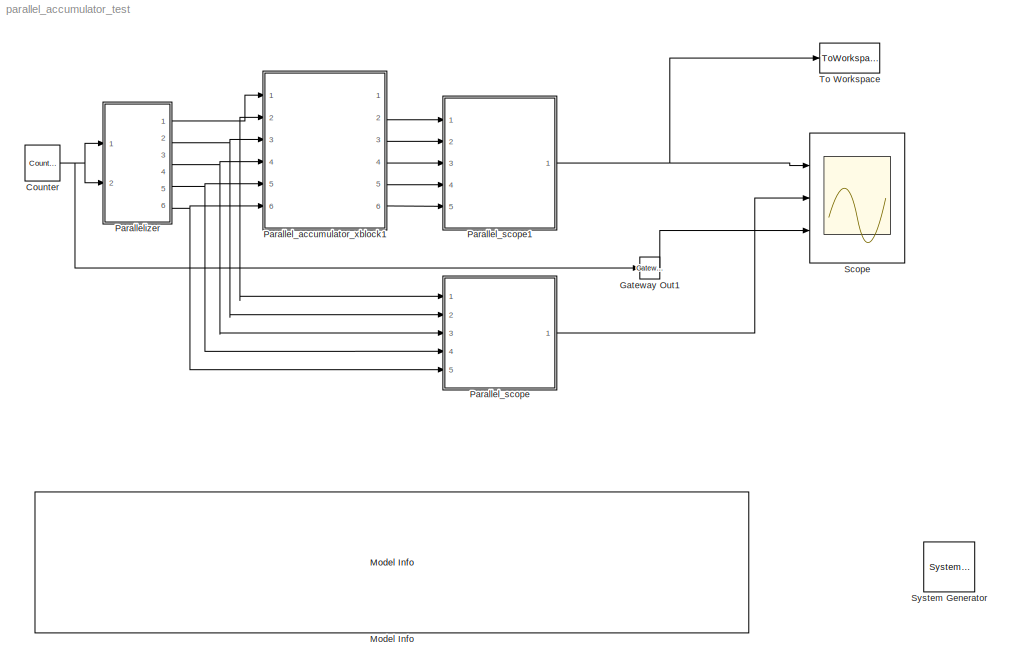
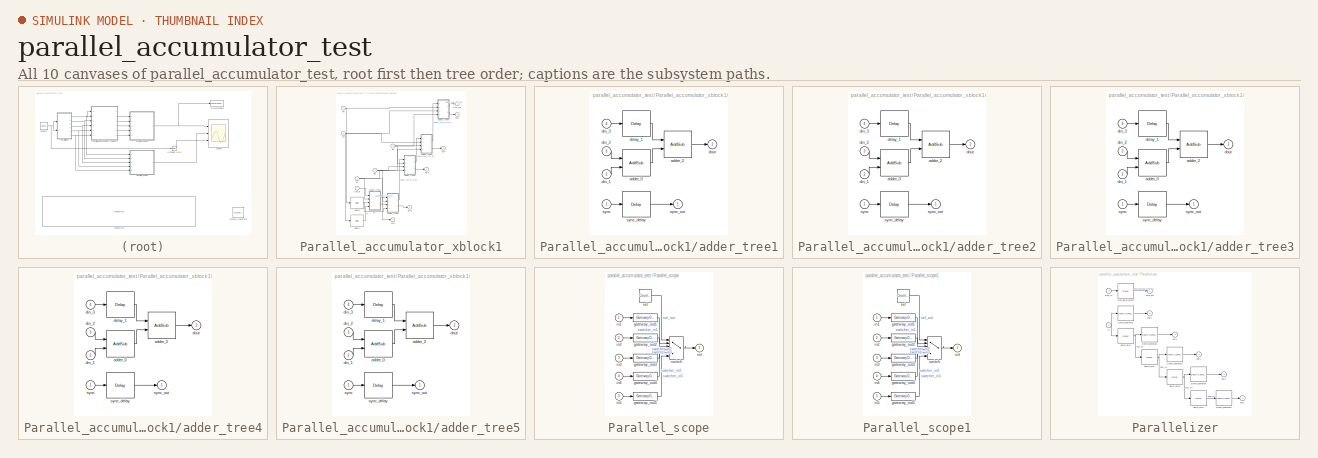
[diagram: thumbnail index - all 10 canvases of the model, root first then tree order]
MODEL parallel_accumulator_test
KIND model
BLOCK [Reference]  System Generator  REF=xbsIndex_r4/ System Generator
  AttributesFormatString = System\\nGenerator
  FunctionWithSeparateData = off
  GeneratePreprocessorConditionals = off
  Impl_file = ISE Defaults
  Ports = []
  RTWMemSecDataConstants = Inherit from model
  RTWMemSecDataInternal = Inherit from model
  RTWMemSecDataParameters = Inherit from model
  RTWMemSecFuncExecute = Inherit from model
  RTWMemSecFuncInitTerm = Inherit from model
  SID = 6
  ShowPortLabels = FromPortIcon
  SourceBlock = xbsIndex_r4/ System Generator
  SourceType = Xilinx System Generator Block
  Synth_file = XST Defaults
  SystemSampleTime = -1
  Tag = genX
  UserData = DataTag0
  UserDataPersistent = on
  block_type = sysgen
  block_version = 11.4
  clock_wrapper = Clock Enables
  core_generation = According to Block Masks
  dbl_ovrd = According to Block Masks
  dcm_input_clock_period = 10
  deprecated_control = off
  directory = ./netlist
  eval_field = 0
  has_advanced_control = 0
  incr_netlist = off
  infoedit = System Generator
  package = ff1156
  part = xc6vsx315t
  proj_type = Project Navigator
  run_coregen = off
  sg_icon_stat = 51,50,0,0,token,white,0,58c5b5770fe5f7c311f53dbc6e73f0f6,right,,[ ],[ ]
  sg_mask_display = fprintf('','COMMENT: begin icon graphics');\npatch([0 51 51 0 0 ],[0 0 50 50 0 ],[1 1 1 ]);\npatch([1.6375 16.81 27.31 37.81 48.31 27.31 12.1375 1.6375 ],[36.655 36.655 47.155 36.655 47.155 47.155 47.155 36.655 ],[0.933333 0.203922 0.141176 ]);\npatch([12.1375 27.31 16.81 1.6375 12.1375 ],[26.155 26.155 36.655 36.655 26.155 ],[0.698039 0.0313725 0.219608 ]);\npatch([1.6375 16.81 27.31 12.1375 1.63...<+337ch>
  sggui_pos = -1,-1,-1,-1
  simulink_period = 1
  speed = -3
  synthesis_tool = XST
  sysclk_period = 10
  testbench = off
  trim_vbits = Everywhere in SubSystem
  xilinxfamily = Virtex6
BLOCK [Reference] Counter  REF=xbsIndex_r4/Counter
  Ports = [0, 1]
  SID = 15
  SourceBlock = xbsIndex_r4/Counter
  SourceType = Xilinx Counter Block
  arith_type = Signed  (2's comp)
  bin_pt = 0
  block_type = counter
  block_version = 11.4
  cnt_by_val = 1
  cnt_to = Inf
  cnt_type = Free Running
  dbl_ovrd = off
  en = off
  explicit_period = on
  has_advanced_control = 0
  implementation = Fabric
  infoedit = Hardware notes: Free running counters are the least expensive in hardware.  A count limited counter is implemented by combining a counter with a comparator.
  load_pin = off
  n_bits = 18
  operation = Up
  period = 1
  rst = off
  sg_icon_stat = 35,36,0,1,white,blue,0,7ac47ef5,right,,[ ],[ ]
  sg_mask_display = fprintf('','COMMENT: begin icon graphics');\npatch([0 35 35 0 0 ],[0 0 36 36 0 ],[0.77 0.82 0.91 ]);\nplot([0 35 35 0 0 ],[0 0 36 36 0 ]);\npatch([5.875 13.1 18.1 23.1 28.1 18.1 10.875 5.875 ],[23.55 23.55 28.55 23.55 28.55 28.55 28.55 23.55 ],[1 1 1 ]);\npatch([10.875 18.1 13.1 5.875 10.875 ],[18.55 18.55 23.55 23.55 18.55 ],[0.931 0.946 0.973 ]);\npatch([5.875 13.1 18.1 10.875 5.875 ],[13.55 13....<+335ch>
  sggui_pos = 56,-122,436,765
  start_count = 0
  use_behavioral_HDL = off
  xl_area = [0,0,0,0,0,0,0]
  xl_use_area = off
BLOCK [Reference] Gateway Out1  REF=xbsIndex_r4/Gateway Out
  LOCs = {}
  Ports = [1, 1]
  SID = 16
  SourceBlock = xbsIndex_r4/Gateway Out
  SourceType = Xilinx Gateway Out Block
  block_type = gatewayout
  block_version = 11.4
  has_advanced_control = 0
  hdl_port = on
  infoedit = Gateway out block.  Converts Xilinx fixed point inputs into ouputs of type Simulink integer, double, or fixed point.<br><br>Hardware notes:  In hardware these blocks become top level output ports or are discarded, depending on how they are configured.
  locs_specified = off
  sg_icon_stat = 20,22,1,1,white,yellow,0,cc31b7ac,right,,[ ],[ ]
  sg_mask_display = fprintf('','COMMENT: begin icon graphics');\npatch([0 20 20 0 0 ],[0 0 22 22 0 ],[0.95 0.93 0.65 ]);\nplot([0 20 20 0 0 ],[0 0 22 22 0 ]);\npatch([5.55 8.44 10.44 12.44 14.44 10.44 7.55 5.55 ],[13.22 13.22 15.22 13.22 15.22 15.22 15.22 13.22 ],[1 1 1 ]);\npatch([7.55 10.44 8.44 5.55 7.55 ],[11.22 11.22 13.22 13.22 11.22 ],[0.985 0.979 0.895 ]);\npatch([5.55 8.44 10.44 7.55 5.55 ],[9.22 9.22 11.22 ...<+383ch>
  sggui_pos = -1,-1,-1,-1
  timing_constraint = None
  xl_area = [0,0,0,0,0,0,0]
  xl_use_area = off
BLOCK [Reference] Model Info  REF=simulink/Model-Wide\nUtilities/Model Info
  BlockCM = None
  DisplayStringWithTags = September 28, 2011:\n\nTest passed. \n\nThe counter generates 1-D discrete samples at 1 sample/clk rate. The parallelizer outputs 4-parallel outputs\nat 4 sample/clk. The Parallel accumulator outputs 4-parallel outputs, each stream is the accumlated sum (for given length).\n\ny(n)=x(n)+x(n-1)+x(n-2)+...+x(n-len+1)\n\nAlso tested: 5-parallel inputs. Various accumulation length. Various add_latency
  Frame = on
  FunctionWithSeparateData = off
  GeneratePreprocessorConditionals = off
  HorizontalTextAlignment = Left
  InitialBlockCM = None
  LeftAlignmentValue = 0.02
  MaskDisplayString = September 28, 2011:\\n\\nTest passed. \\n\\nThe counter generates 1-D discrete samples at 1 sample/clk rate. The parallelizer outputs 4-parallel outputs\\nat 4 sample/clk. The Parallel accumulator outputs 4-parallel outputs, each stream is the accumlated sum (for given length).\\n\\ny(n)=x(n)+x(n-1)+x(n-2)+...+x(n-len+1)\\n\\nAlso tested: 5-parallel inputs. Various accumulation length. Various add...<+8ch>
  Ports = []
  RTWMemSecDataConstants = Inherit from model
  RTWMemSecDataInternal = Inherit from model
  RTWMemSecDataParameters = Inherit from model
  RTWMemSecFuncExecute = Inherit from model
  RTWMemSecFuncInitTerm = Inherit from model
  SID = 11
  ShowPortLabels = FromPortIcon
  SourceBlock = simulink/Model-Wide\nUtilities/Model Info
  SourceBlockDiagram = parallel_accumulator_test
  SourceType = CMBlock
  SystemSampleTime = -1
  TagMaxNumber = 20
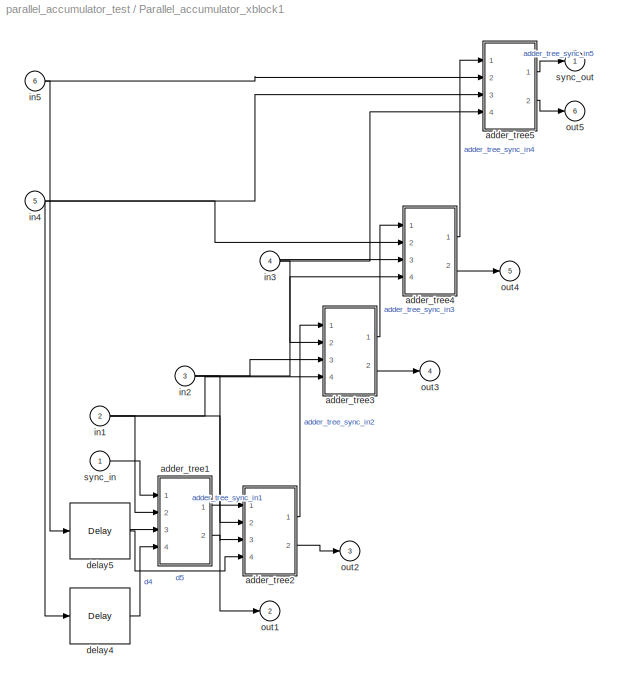
BLOCK [SubSystem] Parallel_accumulator_xblock1
  AncestorBlock = filters_internal/Parallel_accumulator_xblock
  AttributesFormatString = Accumulation Length = 3\nAdd Latency = 5\nDelay Length =1
  FunctionWithSeparateData = off
  MaskCallbackString = ||
  MaskDescription = Parallely accumulate for a given length.
  MaskEnableString = on,on,on
  MaskHideContents = off
  MaskIconFrame = on
  MaskIconOpaque = on
  MaskIconRotate = none
  MaskIconUnits = autoscale
  MaskInitialization = config.source=str2func('parallel_accumulator_init_xblock');\nconfig.depend=get_dependlist('parallel_accumulator');\nconfig.toplevel=gcb;\nset_param(gcb,'LinkStatus','inactive');\nxBlock(config, {config.toplevel,...\n    'n_inputs', n_inputs, ...\n    'len', len, ...\n    'add_latency', add_latency});
  MaskPortRotate = default
  MaskPromptString = number of inputs|Accumulation Lenght|Add Latency
  MaskStyleString = edit,edit,edit
  MaskToolTipString = on,on,on
  MaskTunableValueString = on,on,on
  MaskType = Parallel Accumulator (xBlock)
  MaskValueString = 5|3|5
  MaskVariables = n_inputs=@1;len=@2;add_latency=@3;
  MaskVisibilityString = on,on,on
  MinAlgLoopOccurrences = off
  Opaque = off
  Ports = [6, 6]
  PropExecContextOutsideSubsystem = off
  RTWSystemCode = Auto
  RequestExecContextInheritance = off
  SID = 25
  UserData = DataTag1
  UserDataPersistent = on
BLOCK [SubSystem] Parallel_accumulator_xblock1/adder_tree1
  FunctionWithSeparateData = off
  MaskHideContents = off
  MinAlgLoopOccurrences = off
  Opaque = off
  Ports = [4, 2]
  PropExecContextOutsideSubsystem = off
  RTWSystemCode = Auto
  RequestExecContextInheritance = off
  SID = 25:4864
BLOCK [Reference] Parallel_accumulator_xblock1/adder_tree1/adder_0  REF=xbsIndex_r4/AddSub
  Ports = [2, 1]
  SID = 25:4873
  SourceBlock = xbsIndex_r4/AddSub
  SourceType = Xilinx Adder/Subtracter Block
  arith_type = Unsigned
  bin_pt = 17
  block_type = addsub
  dbl_ovrd = off
  en = off
  has_advanced_control = 0
  hw_selection = Fabric
  latency = 5
  mode = Addition
  n_bits = 18
  overflow = Saturate
  pipelined = off
  precision = Full
  quantization = Round  (unbiased: +/- Inf)
  sg_icon_stat = 60,58,2,1,white,blue,0,895a9e01,right,,[ ],[ ]
  sg_mask_display = fprintf('','COMMENT: begin icon graphics');\npatch([0 60 60 0 0 ],[0 0 58 58 0 ],[0.77 0.82 0.91 ]);\nplot([0 60 60 0 0 ],[0 0 58 58 0 ]);\npatch([12.2 23.76 31.76 39.76 47.76 31.76 20.2 12.2 ],[37.88 37.88 45.88 37.88 45.88 45.88 45.88 37.88 ],[1 1 1 ]);\npatch([20.2 31.76 23.76 12.2 20.2 ],[29.88 29.88 37.88 37.88 29.88 ],[0.931 0.946 0.973 ]);\npatch([12.2 23.76 31.76 20.2 12.2 ],[21.88 21.88 2...<+538ch>  <repeated x10 — deduplicated; at blocks: adder_0, adder_2>
  sggui_pos = -1,-1,-1,-1
  use_behavioral_HDL = on
  use_carryin = off
  use_carryout = off
  xl_area = [0,0,0,0,0,0,0]
  xl_use_area = off
BLOCK [Reference] Parallel_accumulator_xblock1/adder_tree1/adder_2  REF=xbsIndex_r4/AddSub
  Ports = [2, 1]
  SID = 25:4875
  SourceBlock = xbsIndex_r4/AddSub
  SourceType = Xilinx Adder/Subtracter Block
  arith_type = Unsigned
  bin_pt = 17
  block_type = addsub
  dbl_ovrd = off
  en = off
  has_advanced_control = 0
  hw_selection = Fabric
  latency = 5
  mode = Addition
  n_bits = 18
  overflow = Saturate
  pipelined = off
  precision = Full
  quantization = Round  (unbiased: +/- Inf)
  sg_icon_stat = 60,58,2,1,white,blue,0,895a9e01,right,,[ ],[ ]
  sggui_pos = -1,-1,-1,-1
  use_behavioral_HDL = on
  use_carryin = off
  use_carryout = off
  xl_area = [0,0,0,0,0,0,0]
  xl_use_area = off
BLOCK [Reference] Parallel_accumulator_xblock1/adder_tree1/delay_1  REF=xbsIndex_r4/Delay
  Ports = [1, 1]
  SID = 25:4874
  SourceBlock = xbsIndex_r4/Delay
  SourceType = Xilinx Delay Block
  block_type = delay
  dbl_ovrd = off
  en = off
  has_advanced_control = 0
  infoedit = Hardware notes: A delay line is a chain, each link of which is an SRL16 followed by a flip-flop.
  infoeditControl = Selection of Reset will increase slice count due to use of real FFs and instead of SRLs
  latency = 5
  reg_retiming = off
  rst = off
  sg_icon_stat = 60,56,1,1,white,blue,0,ec356abf,right,,[ ],[ ]
  sg_mask_display = fprintf('','COMMENT: begin icon graphics');\npatch([0 60 60 0 0 ],[0 0 56 56 0 ],[0.77 0.82 0.91 ]);\nplot([0 60 60 0 0 ],[0 0 56 56 0 ]);\npatch([12.2 23.76 31.76 39.76 47.76 31.76 20.2 12.2 ],[36.88 36.88 44.88 36.88 44.88 44.88 44.88 36.88 ],[1 1 1 ]);\npatch([20.2 31.76 23.76 12.2 20.2 ],[28.88 28.88 36.88 36.88 28.88 ],[0.931 0.946 0.973 ]);\npatch([12.2 23.76 31.76 20.2 12.2 ],[20.88 20.88 2...<+320ch>  <repeated x12 — deduplicated; at blocks: delay_1, delay4, delay5, delay_blk1, delay_blk2, delay_blk3, delay_blk4, sync_delay_block>
  sggui_pos = -1,-1,-1,-1
  xl_area = [0,0,0,0,0,0,0]
  xl_use_area = off
BLOCK [Inport] Parallel_accumulator_xblock1/adder_tree1/din_1
  IconDisplay = Port number
  Port = 2
  SID = 25:4866
BLOCK [Inport] Parallel_accumulator_xblock1/adder_tree1/din_2
  IconDisplay = Port number
  Port = 3
  SID = 25:4867
BLOCK [Inport] Parallel_accumulator_xblock1/adder_tree1/din_3
  IconDisplay = Port number
  Port = 4
  SID = 25:4868
BLOCK [Outport] Parallel_accumulator_xblock1/adder_tree1/dout
  IconDisplay = Port number
  Port = 2
  SID = 25:4870
BLOCK [Inport] Parallel_accumulator_xblock1/adder_tree1/sync
  IconDisplay = Port number
  SID = 25:4865
BLOCK [Reference] Parallel_accumulator_xblock1/adder_tree1/sync_delay  REF=xbsIndex_r4/Delay
  Ports = [1, 1]
  SID = 25:4871
  SourceBlock = xbsIndex_r4/Delay
  SourceType = Xilinx Delay Block
  block_type = delay
  dbl_ovrd = off
  en = off
  has_advanced_control = 0
  infoedit = Hardware notes: A delay line is a chain, each link of which is an SRL16 followed by a flip-flop.
  infoeditControl = Selection of Reset will increase slice count due to use of real FFs and instead of SRLs
  latency = 10
  reg_retiming = off
  rst = off
  sg_icon_stat = 60,56,1,1,white,blue,0,8c471295,right,,[ ],[ ]
  sg_mask_display = fprintf('','COMMENT: begin icon graphics');\npatch([0 60 60 0 0 ],[0 0 56 56 0 ],[0.77 0.82 0.91 ]);\nplot([0 60 60 0 0 ],[0 0 56 56 0 ]);\npatch([12.2 23.76 31.76 39.76 47.76 31.76 20.2 12.2 ],[36.88 36.88 44.88 36.88 44.88 44.88 44.88 36.88 ],[1 1 1 ]);\npatch([20.2 31.76 23.76 12.2 20.2 ],[28.88 28.88 36.88 36.88 28.88 ],[0.931 0.946 0.973 ]);\npatch([12.2 23.76 31.76 20.2 12.2 ],[20.88 20.88 2...<+321ch>  <repeated x5 — deduplicated; at blocks: sync_delay>
  sggui_pos = -1,-1,-1,-1
  xl_area = [0,0,0,0,0,0,0]
  xl_use_area = off
BLOCK [Outport] Parallel_accumulator_xblock1/adder_tree1/sync_out
  IconDisplay = Port number
  SID = 25:4869
BLOCK [SubSystem] Parallel_accumulator_xblock1/adder_tree2
  FunctionWithSeparateData = off
  MaskHideContents = off
  MinAlgLoopOccurrences = off
  Opaque = off
  Ports = [4, 2]
  PropExecContextOutsideSubsystem = off
  RTWSystemCode = Auto
  RequestExecContextInheritance = off
  SID = 25:4876
BLOCK [Reference] Parallel_accumulator_xblock1/adder_tree2/adder_0  REF=xbsIndex_r4/AddSub
  Ports = [2, 1]
  SID = 25:4885
  SourceBlock = xbsIndex_r4/AddSub
  SourceType = Xilinx Adder/Subtracter Block
  arith_type = Unsigned
  bin_pt = 17
  block_type = addsub
  dbl_ovrd = off
  en = off
  has_advanced_control = 0
  hw_selection = Fabric
  latency = 5
  mode = Addition
  n_bits = 18
  overflow = Saturate
  pipelined = off
  precision = Full
  quantization = Round  (unbiased: +/- Inf)
  sg_icon_stat = 60,58,2,1,white,blue,0,895a9e01,right,,[ ],[ ]
  sggui_pos = -1,-1,-1,-1
  use_behavioral_HDL = on
  use_carryin = off
  use_carryout = off
  xl_area = [0,0,0,0,0,0,0]
  xl_use_area = off
BLOCK [Reference] Parallel_accumulator_xblock1/adder_tree2/adder_2  REF=xbsIndex_r4/AddSub
  Ports = [2, 1]
  SID = 25:4887
  SourceBlock = xbsIndex_r4/AddSub
  SourceType = Xilinx Adder/Subtracter Block
  arith_type = Unsigned
  bin_pt = 17
  block_type = addsub
  dbl_ovrd = off
  en = off
  has_advanced_control = 0
  hw_selection = Fabric
  latency = 5
  mode = Addition
  n_bits = 18
  overflow = Saturate
  pipelined = off
  precision = Full
  quantization = Round  (unbiased: +/- Inf)
  sg_icon_stat = 60,58,2,1,white,blue,0,895a9e01,right,,[ ],[ ]
  sggui_pos = -1,-1,-1,-1
  use_behavioral_HDL = on
  use_carryin = off
  use_carryout = off
  xl_area = [0,0,0,0,0,0,0]
  xl_use_area = off
BLOCK [Reference] Parallel_accumulator_xblock1/adder_tree2/delay_1  REF=xbsIndex_r4/Delay
  Ports = [1, 1]
  SID = 25:4886
  SourceBlock = xbsIndex_r4/Delay
  SourceType = Xilinx Delay Block
  block_type = delay
  dbl_ovrd = off
  en = off
  has_advanced_control = 0
  infoedit = Hardware notes: A delay line is a chain, each link of which is an SRL16 followed by a flip-flop.
  infoeditControl = Selection of Reset will increase slice count due to use of real FFs and instead of SRLs
  latency = 5
  reg_retiming = off
  rst = off
  sg_icon_stat = 60,56,1,1,white,blue,0,ec356abf,right,,[ ],[ ]
  sggui_pos = -1,-1,-1,-1
  xl_area = [0,0,0,0,0,0,0]
  xl_use_area = off
BLOCK [Inport] Parallel_accumulator_xblock1/adder_tree2/din_1
  IconDisplay = Port number
  Port = 2
  SID = 25:4878
BLOCK [Inport] Parallel_accumulator_xblock1/adder_tree2/din_2
  IconDisplay = Port number
  Port = 3
  SID = 25:4879
BLOCK [Inport] Parallel_accumulator_xblock1/adder_tree2/din_3
  IconDisplay = Port number
  Port = 4
  SID = 25:4880
BLOCK [Outport] Parallel_accumulator_xblock1/adder_tree2/dout
  IconDisplay = Port number
  Port = 2
  SID = 25:4882
BLOCK [Inport] Parallel_accumulator_xblock1/adder_tree2/sync
  IconDisplay = Port number
  SID = 25:4877
BLOCK [Reference] Parallel_accumulator_xblock1/adder_tree2/sync_delay  REF=xbsIndex_r4/Delay
  Ports = [1, 1]
  SID = 25:4883
  SourceBlock = xbsIndex_r4/Delay
  SourceType = Xilinx Delay Block
  block_type = delay
  dbl_ovrd = off
  en = off
  has_advanced_control = 0
  infoedit = Hardware notes: A delay line is a chain, each link of which is an SRL16 followed by a flip-flop.
  infoeditControl = Selection of Reset will increase slice count due to use of real FFs and instead of SRLs
  latency = 10
  reg_retiming = off
  rst = off
  sg_icon_stat = 60,56,1,1,white,blue,0,8c471295,right,,[ ],[ ]
  sggui_pos = -1,-1,-1,-1
  xl_area = [0,0,0,0,0,0,0]
  xl_use_area = off
BLOCK [Outport] Parallel_accumulator_xblock1/adder_tree2/sync_out
  IconDisplay = Port number
  SID = 25:4881
BLOCK [SubSystem] Parallel_accumulator_xblock1/adder_tree3
  FunctionWithSeparateData = off
  MaskHideContents = off
  MinAlgLoopOccurrences = off
  Opaque = off
  Ports = [4, 2]
  PropExecContextOutsideSubsystem = off
  RTWSystemCode = Auto
  RequestExecContextInheritance = off
  SID = 25:4888
BLOCK [Reference] Parallel_accumulator_xblock1/adder_tree3/adder_0  REF=xbsIndex_r4/AddSub
  Ports = [2, 1]
  SID = 25:4897
  SourceBlock = xbsIndex_r4/AddSub
  SourceType = Xilinx Adder/Subtracter Block
  arith_type = Unsigned
  bin_pt = 17
  block_type = addsub
  dbl_ovrd = off
  en = off
  has_advanced_control = 0
  hw_selection = Fabric
  latency = 5
  mode = Addition
  n_bits = 18
  overflow = Saturate
  pipelined = off
  precision = Full
  quantization = Round  (unbiased: +/- Inf)
  sg_icon_stat = 60,58,2,1,white,blue,0,895a9e01,right,,[ ],[ ]
  sggui_pos = -1,-1,-1,-1
  use_behavioral_HDL = on
  use_carryin = off
  use_carryout = off
  xl_area = [0,0,0,0,0,0,0]
  xl_use_area = off
BLOCK [Reference] Parallel_accumulator_xblock1/adder_tree3/adder_2  REF=xbsIndex_r4/AddSub
  Ports = [2, 1]
  SID = 25:4899
  SourceBlock = xbsIndex_r4/AddSub
  SourceType = Xilinx Adder/Subtracter Block
  arith_type = Unsigned
  bin_pt = 17
  block_type = addsub
  dbl_ovrd = off
  en = off
  has_advanced_control = 0
  hw_selection = Fabric
  latency = 5
  mode = Addition
  n_bits = 18
  overflow = Saturate
  pipelined = off
  precision = Full
  quantization = Round  (unbiased: +/- Inf)
  sg_icon_stat = 60,58,2,1,white,blue,0,895a9e01,right,,[ ],[ ]
  sggui_pos = -1,-1,-1,-1
  use_behavioral_HDL = on
  use_carryin = off
  use_carryout = off
  xl_area = [0,0,0,0,0,0,0]
  xl_use_area = off
BLOCK [Reference] Parallel_accumulator_xblock1/adder_tree3/delay_1  REF=xbsIndex_r4/Delay
  Ports = [1, 1]
  SID = 25:4898
  SourceBlock = xbsIndex_r4/Delay
  SourceType = Xilinx Delay Block
  block_type = delay
  dbl_ovrd = off
  en = off
  has_advanced_control = 0
  infoedit = Hardware notes: A delay line is a chain, each link of which is an SRL16 followed by a flip-flop.
  infoeditControl = Selection of Reset will increase slice count due to use of real FFs and instead of SRLs
  latency = 5
  reg_retiming = off
  rst = off
  sg_icon_stat = 60,56,1,1,white,blue,0,ec356abf,right,,[ ],[ ]
  sggui_pos = -1,-1,-1,-1
  xl_area = [0,0,0,0,0,0,0]
  xl_use_area = off
BLOCK [Inport] Parallel_accumulator_xblock1/adder_tree3/din_1
  IconDisplay = Port number
  Port = 2
  SID = 25:4890
BLOCK [Inport] Parallel_accumulator_xblock1/adder_tree3/din_2
  IconDisplay = Port number
  Port = 3
  SID = 25:4891
BLOCK [Inport] Parallel_accumulator_xblock1/adder_tree3/din_3
  IconDisplay = Port number
  Port = 4
  SID = 25:4892
BLOCK [Outport] Parallel_accumulator_xblock1/adder_tree3/dout
  IconDisplay = Port number
  Port = 2
  SID = 25:4894
BLOCK [Inport] Parallel_accumulator_xblock1/adder_tree3/sync
  IconDisplay = Port number
  SID = 25:4889
BLOCK [Reference] Parallel_accumulator_xblock1/adder_tree3/sync_delay  REF=xbsIndex_r4/Delay
  Ports = [1, 1]
  SID = 25:4895
  SourceBlock = xbsIndex_r4/Delay
  SourceType = Xilinx Delay Block
  block_type = delay
  dbl_ovrd = off
  en = off
  has_advanced_control = 0
  infoedit = Hardware notes: A delay line is a chain, each link of which is an SRL16 followed by a flip-flop.
  infoeditControl = Selection of Reset will increase slice count due to use of real FFs and instead of SRLs
  latency = 10
  reg_retiming = off
  rst = off
  sg_icon_stat = 60,56,1,1,white,blue,0,8c471295,right,,[ ],[ ]
  sggui_pos = -1,-1,-1,-1
  xl_area = [0,0,0,0,0,0,0]
  xl_use_area = off
BLOCK [Outport] Parallel_accumulator_xblock1/adder_tree3/sync_out
  IconDisplay = Port number
  SID = 25:4893
BLOCK [SubSystem] Parallel_accumulator_xblock1/adder_tree4
  FunctionWithSeparateData = off
  MaskHideContents = off
  MinAlgLoopOccurrences = off
  Opaque = off
  Ports = [4, 2]
  PropExecContextOutsideSubsystem = off
  RTWSystemCode = Auto
  RequestExecContextInheritance = off
  SID = 25:4900
BLOCK [Reference] Parallel_accumulator_xblock1/adder_tree4/adder_0  REF=xbsIndex_r4/AddSub
  Ports = [2, 1]
  SID = 25:4909
  SourceBlock = xbsIndex_r4/AddSub
  SourceType = Xilinx Adder/Subtracter Block
  arith_type = Unsigned
  bin_pt = 17
  block_type = addsub
  dbl_ovrd = off
  en = off
  has_advanced_control = 0
  hw_selection = Fabric
  latency = 5
  mode = Addition
  n_bits = 18
  overflow = Saturate
  pipelined = off
  precision = Full
  quantization = Round  (unbiased: +/- Inf)
  sg_icon_stat = 60,58,2,1,white,blue,0,895a9e01,right,,[ ],[ ]
  sggui_pos = -1,-1,-1,-1
  use_behavioral_HDL = on
  use_carryin = off
  use_carryout = off
  xl_area = [0,0,0,0,0,0,0]
  xl_use_area = off
BLOCK [Reference] Parallel_accumulator_xblock1/adder_tree4/adder_2  REF=xbsIndex_r4/AddSub
  Ports = [2, 1]
  SID = 25:4911
  SourceBlock = xbsIndex_r4/AddSub
  SourceType = Xilinx Adder/Subtracter Block
  arith_type = Unsigned
  bin_pt = 17
  block_type = addsub
  dbl_ovrd = off
  en = off
  has_advanced_control = 0
  hw_selection = Fabric
  latency = 5
  mode = Addition
  n_bits = 18
  overflow = Saturate
  pipelined = off
  precision = Full
  quantization = Round  (unbiased: +/- Inf)
  sg_icon_stat = 60,58,2,1,white,blue,0,895a9e01,right,,[ ],[ ]
  sggui_pos = -1,-1,-1,-1
  use_behavioral_HDL = on
  use_carryin = off
  use_carryout = off
  xl_area = [0,0,0,0,0,0,0]
  xl_use_area = off
BLOCK [Reference] Parallel_accumulator_xblock1/adder_tree4/delay_1  REF=xbsIndex_r4/Delay
  Ports = [1, 1]
  SID = 25:4910
  SourceBlock = xbsIndex_r4/Delay
  SourceType = Xilinx Delay Block
  block_type = delay
  dbl_ovrd = off
  en = off
  has_advanced_control = 0
  infoedit = Hardware notes: A delay line is a chain, each link of which is an SRL16 followed by a flip-flop.
  infoeditControl = Selection of Reset will increase slice count due to use of real FFs and instead of SRLs
  latency = 5
  reg_retiming = off
  rst = off
  sg_icon_stat = 60,56,1,1,white,blue,0,ec356abf,right,,[ ],[ ]
  sggui_pos = -1,-1,-1,-1
  xl_area = [0,0,0,0,0,0,0]
  xl_use_area = off
BLOCK [Inport] Parallel_accumulator_xblock1/adder_tree4/din_1
  IconDisplay = Port number
  Port = 2
  SID = 25:4902
BLOCK [Inport] Parallel_accumulator_xblock1/adder_tree4/din_2
  IconDisplay = Port number
  Port = 3
  SID = 25:4903
BLOCK [Inport] Parallel_accumulator_xblock1/adder_tree4/din_3
  IconDisplay = Port number
  Port = 4
  SID = 25:4904
BLOCK [Outport] Parallel_accumulator_xblock1/adder_tree4/dout
  IconDisplay = Port number
  Port = 2
  SID = 25:4906
BLOCK [Inport] Parallel_accumulator_xblock1/adder_tree4/sync
  IconDisplay = Port number
  SID = 25:4901
BLOCK [Reference] Parallel_accumulator_xblock1/adder_tree4/sync_delay  REF=xbsIndex_r4/Delay
  Ports = [1, 1]
  SID = 25:4907
  SourceBlock = xbsIndex_r4/Delay
  SourceType = Xilinx Delay Block
  block_type = delay
  dbl_ovrd = off
  en = off
  has_advanced_control = 0
  infoedit = Hardware notes: A delay line is a chain, each link of which is an SRL16 followed by a flip-flop.
  infoeditControl = Selection of Reset will increase slice count due to use of real FFs and instead of SRLs
  latency = 10
  reg_retiming = off
  rst = off
  sg_icon_stat = 60,56,1,1,white,blue,0,8c471295,right,,[ ],[ ]
  sggui_pos = -1,-1,-1,-1
  xl_area = [0,0,0,0,0,0,0]
  xl_use_area = off
BLOCK [Outport] Parallel_accumulator_xblock1/adder_tree4/sync_out
  IconDisplay = Port number
  SID = 25:4905
BLOCK [SubSystem] Parallel_accumulator_xblock1/adder_tree5
  FunctionWithSeparateData = off
  MaskHideContents = off
  MinAlgLoopOccurrences = off
  Opaque = off
  Ports = [4, 2]
  PropExecContextOutsideSubsystem = off
  RTWSystemCode = Auto
  RequestExecContextInheritance = off
  SID = 25:4912
BLOCK [Reference] Parallel_accumulator_xblock1/adder_tree5/adder_0  REF=xbsIndex_r4/AddSub
  Ports = [2, 1]
  SID = 25:4921
  SourceBlock = xbsIndex_r4/AddSub
  SourceType = Xilinx Adder/Subtracter Block
  arith_type = Unsigned
  bin_pt = 17
  block_type = addsub
  dbl_ovrd = off
  en = off
  has_advanced_control = 0
  hw_selection = Fabric
  latency = 5
  mode = Addition
  n_bits = 18
  overflow = Saturate
  pipelined = off
  precision = Full
  quantization = Round  (unbiased: +/- Inf)
  sg_icon_stat = 60,58,2,1,white,blue,0,895a9e01,right,,[ ],[ ]
  sggui_pos = -1,-1,-1,-1
  use_behavioral_HDL = on
  use_carryin = off
  use_carryout = off
  xl_area = [0,0,0,0,0,0,0]
  xl_use_area = off
BLOCK [Reference] Parallel_accumulator_xblock1/adder_tree5/adder_2  REF=xbsIndex_r4/AddSub
  Ports = [2, 1]
  SID = 25:4923
  SourceBlock = xbsIndex_r4/AddSub
  SourceType = Xilinx Adder/Subtracter Block
  arith_type = Unsigned
  bin_pt = 17
  block_type = addsub
  dbl_ovrd = off
  en = off
  has_advanced_control = 0
  hw_selection = Fabric
  latency = 5
  mode = Addition
  n_bits = 18
  overflow = Saturate
  pipelined = off
  precision = Full
  quantization = Round  (unbiased: +/- Inf)
  sg_icon_stat = 60,58,2,1,white,blue,0,895a9e01,right,,[ ],[ ]
  sggui_pos = -1,-1,-1,-1
  use_behavioral_HDL = on
  use_carryin = off
  use_carryout = off
  xl_area = [0,0,0,0,0,0,0]
  xl_use_area = off
BLOCK [Reference] Parallel_accumulator_xblock1/adder_tree5/delay_1  REF=xbsIndex_r4/Delay
  Ports = [1, 1]
  SID = 25:4922
  SourceBlock = xbsIndex_r4/Delay
  SourceType = Xilinx Delay Block
  block_type = delay
  dbl_ovrd = off
  en = off
  has_advanced_control = 0
  infoedit = Hardware notes: A delay line is a chain, each link of which is an SRL16 followed by a flip-flop.
  infoeditControl = Selection of Reset will increase slice count due to use of real FFs and instead of SRLs
  latency = 5
  reg_retiming = off
  rst = off
  sg_icon_stat = 60,56,1,1,white,blue,0,ec356abf,right,,[ ],[ ]
  sggui_pos = -1,-1,-1,-1
  xl_area = [0,0,0,0,0,0,0]
  xl_use_area = off
BLOCK [Inport] Parallel_accumulator_xblock1/adder_tree5/din_1
  IconDisplay = Port number
  Port = 2
  SID = 25:4914
BLOCK [Inport] Parallel_accumulator_xblock1/adder_tree5/din_2
  IconDisplay = Port number
  Port = 3
  SID = 25:4915
BLOCK [Inport] Parallel_accumulator_xblock1/adder_tree5/din_3
  IconDisplay = Port number
  Port = 4
  SID = 25:4916
BLOCK [Outport] Parallel_accumulator_xblock1/adder_tree5/dout
  IconDisplay = Port number
  Port = 2
  SID = 25:4918
BLOCK [Inport] Parallel_accumulator_xblock1/adder_tree5/sync
  IconDisplay = Port number
  SID = 25:4913
BLOCK [Reference] Parallel_accumulator_xblock1/adder_tree5/sync_delay  REF=xbsIndex_r4/Delay
  Ports = [1, 1]
  SID = 25:4919
  SourceBlock = xbsIndex_r4/Delay
  SourceType = Xilinx Delay Block
  block_type = delay
  dbl_ovrd = off
  en = off
  has_advanced_control = 0
  infoedit = Hardware notes: A delay line is a chain, each link of which is an SRL16 followed by a flip-flop.
  infoeditControl = Selection of Reset will increase slice count due to use of real FFs and instead of SRLs
  latency = 10
  reg_retiming = off
  rst = off
  sg_icon_stat = 60,56,1,1,white,blue,0,8c471295,right,,[ ],[ ]
  sggui_pos = -1,-1,-1,-1
  xl_area = [0,0,0,0,0,0,0]
  xl_use_area = off
BLOCK [Outport] Parallel_accumulator_xblock1/adder_tree5/sync_out
  IconDisplay = Port number
  SID = 25:4917
BLOCK [Reference] Parallel_accumulator_xblock1/delay4  REF=xbsIndex_r4/Delay
  Ports = [1, 1]
  SID = 25:4863
  SourceBlock = xbsIndex_r4/Delay
  SourceType = Xilinx Delay Block
  block_type = delay
  dbl_ovrd = off
  en = off
  has_advanced_control = 0
  infoedit = Hardware notes: A delay line is a chain, each link of which is an SRL16 followed by a flip-flop.
  infoeditControl = Selection of Reset will increase slice count due to use of real FFs and instead of SRLs
  latency = 1
  reg_retiming = off
  rst = off
  sg_icon_stat = 60,56,1,1,white,blue,0,07b98262,right,,[ ],[ ]
  sggui_pos = -1,-1,-1,-1
  xl_area = [0,0,0,0,0,0,0]
  xl_use_area = off
BLOCK [Reference] Parallel_accumulator_xblock1/delay5  REF=xbsIndex_r4/Delay
  Ports = [1, 1]
  SID = 25:4862
  SourceBlock = xbsIndex_r4/Delay
  SourceType = Xilinx Delay Block
  block_type = delay
  dbl_ovrd = off
  en = off
  has_advanced_control = 0
  infoedit = Hardware notes: A delay line is a chain, each link of which is an SRL16 followed by a flip-flop.
  infoeditControl = Selection of Reset will increase slice count due to use of real FFs and instead of SRLs
  latency = 1
  reg_retiming = off
  rst = off
  sg_icon_stat = 60,56,1,1,white,blue,0,07b98262,right,,[ ],[ ]
  sggui_pos = -1,-1,-1,-1
  xl_area = [0,0,0,0,0,0,0]
  xl_use_area = off
BLOCK [Inport] Parallel_accumulator_xblock1/in1
  IconDisplay = Port number
  Port = 2
  SID = 25:3
BLOCK [Inport] Parallel_accumulator_xblock1/in2
  IconDisplay = Port number
  Port = 3
  SID = 25:4
BLOCK [Inport] Parallel_accumulator_xblock1/in3
  IconDisplay = Port number
  Port = 4
  SID = 25:5
BLOCK [Inport] Parallel_accumulator_xblock1/in4
  IconDisplay = Port number
  Port = 5
  SID = 25:6
BLOCK [Inport] Parallel_accumulator_xblock1/in5
  IconDisplay = Port number
  Port = 6
  SID = 25:1253
BLOCK [Outport] Parallel_accumulator_xblock1/out1
  IconDisplay = Port number
  Port = 2
  SID = 25:95
BLOCK [Outport] Parallel_accumulator_xblock1/out2
  IconDisplay = Port number
  Port = 3
  SID = 25:96
BLOCK [Outport] Parallel_accumulator_xblock1/out3
  IconDisplay = Port number
  Port = 4
  SID = 25:97
BLOCK [Outport] Parallel_accumulator_xblock1/out4
  IconDisplay = Port number
  Port = 5
  SID = 25:98
BLOCK [Outport] Parallel_accumulator_xblock1/out5
  IconDisplay = Port number
  Port = 6
  SID = 25:1254
BLOCK [Inport] Parallel_accumulator_xblock1/sync_in
  IconDisplay = Port number
  SID = 25:2
BLOCK [Outport] Parallel_accumulator_xblock1/sync_out
  IconDisplay = Port number
  SID = 25:94
BLOCK [SubSystem] Parallel_scope
  AncestorBlock = To_be_added_to_xBlocks_devels/Parallel_scope
  AttributesFormatString = Sample Period = 5
  FunctionWithSeparateData = off
  MaskCallbackString = |
  MaskDescription = This parallel scope can handle parallel inputs \nby propagating though gateways and serialize into \none single stream. The output can then be connected\ndirectly to a scope or toWorkspace. \n\nThe sample_period desribes the parallel inputs rate. \nFor example, for a 4-inputs stream with sample_period = 1\n(4 parallel inputs per Clk),  the output stream frequency \nwould be 4/1 = 4 (Sample/Clk)
  MaskEnableString = on,on
  MaskHideContents = off
  MaskIconFrame = on
  MaskIconOpaque = on
  MaskIconRotate = none
  MaskIconUnits = autoscale
  MaskInitialization = config.source=str2func('parallel_scope_init_xblock');\nconfig.depend=get_dependlist('parallel_scope');\nconfig.toplevel=gcb;\nset_param(gcb,'LinkStatus','inactive');\nxBlock(config, {config.toplevel,...\n    'n_inputs', n_inputs, ...\n    'sample_period', sample_period});
  MaskPortRotate = default
  MaskPromptString = Number of inputs|Sample Period
  MaskStyleString = edit,edit
  MaskToolTipString = on,on
  MaskTunableValueString = on,on
  MaskType = Parallel Scope
  MaskValueString = 5|5
  MaskVariables = n_inputs=@1;sample_period=@2;
  MaskVisibilityString = on,on
  MinAlgLoopOccurrences = off
  Opaque = off
  Ports = [5, 1]
  PropExecContextOutsideSubsystem = off
  RTWSystemCode = Auto
  RequestExecContextInheritance = off
  SID = 18
  UserData = DataTag2
  UserDataPersistent = on
BLOCK [Reference] Parallel_scope/gateway_out1  REF=xbsIndex_r4/Gateway Out
  LOCs = {}
  Ports = [1, 1]
  SID = 18:145
  SourceBlock = xbsIndex_r4/Gateway Out
  SourceType = Xilinx Gateway Out Block
  block_type = gatewayout
  has_advanced_control = 0
  hdl_port = off
  infoedit = Gateway out block.  Converts Xilinx fixed point or floating-point type inputs into ouputs of type Simulink integer, double, or fixed point.<br><br>Hardware notes:  In hardware these blocks become top level output ports or are discarded, depending on how they are configured.  <repeated x10 — deduplicated; at blocks: gateway_out1, gateway_out2, gateway_out3, gateway_out4, gateway_out5>
  locs_specified = off
  sg_icon_stat = 60,20,1,1,white,grey,0,632ec840,right,,[ ],[ ]
  sg_mask_display = fprintf('','COMMENT: begin icon graphics');\npatch([0 60 60 0 0 ],[0 0 20 20 0 ],[0.88 0.88 0.88 ]);\nplot([0 60 60 0 0 ],[0 0 20 20 0 ]);\npatch([25.55 28.44 30.44 32.44 34.44 30.44 27.55 25.55 ],[12.22 12.22 14.22 12.22 14.22 14.22 14.22 12.22 ],[1 1 1 ]);\npatch([27.55 30.44 28.44 25.55 27.55 ],[10.22 10.22 12.22 12.22 10.22 ],[0.964 0.964 0.964 ]);\npatch([25.55 28.44 30.44 27.55 25.55 ],[8.22...<+393ch>  <repeated x10 — deduplicated; at blocks: gateway_out1, gateway_out2, gateway_out3, gateway_out4, gateway_out5>
  sggui_pos = -1,-1,-1,-1
  timing_constraint = None
  xl_area = [0,0,0,0,0,0,0]
  xl_use_area = off
BLOCK [Reference] Parallel_scope/gateway_out2  REF=xbsIndex_r4/Gateway Out
  LOCs = {}
  Ports = [1, 1]
  SID = 18:146
  SourceBlock = xbsIndex_r4/Gateway Out
  SourceType = Xilinx Gateway Out Block
  block_type = gatewayout
  has_advanced_control = 0
  hdl_port = off
  locs_specified = off
  sg_icon_stat = 60,20,1,1,white,grey,0,632ec840,right,,[ ],[ ]
  sggui_pos = -1,-1,-1,-1
  timing_constraint = None
  xl_area = [0,0,0,0,0,0,0]
  xl_use_area = off
BLOCK [Reference] Parallel_scope/gateway_out3  REF=xbsIndex_r4/Gateway Out
  LOCs = {}
  Ports = [1, 1]
  SID = 18:147
  SourceBlock = xbsIndex_r4/Gateway Out
  SourceType = Xilinx Gateway Out Block
  block_type = gatewayout
  has_advanced_control = 0
  hdl_port = off
  locs_specified = off
  sg_icon_stat = 60,20,1,1,white,grey,0,632ec840,right,,[ ],[ ]
  sggui_pos = -1,-1,-1,-1
  timing_constraint = None
  xl_area = [0,0,0,0,0,0,0]
  xl_use_area = off
BLOCK [Reference] Parallel_scope/gateway_out4  REF=xbsIndex_r4/Gateway Out
  LOCs = {}
  Ports = [1, 1]
  SID = 18:148
  SourceBlock = xbsIndex_r4/Gateway Out
  SourceType = Xilinx Gateway Out Block
  block_type = gatewayout
  has_advanced_control = 0
  hdl_port = off
  locs_specified = off
  sg_icon_stat = 60,20,1,1,white,grey,0,632ec840,right,,[ ],[ ]
  sggui_pos = -1,-1,-1,-1
  timing_constraint = None
  xl_area = [0,0,0,0,0,0,0]
  xl_use_area = off
BLOCK [Reference] Parallel_scope/gateway_out5  REF=xbsIndex_r4/Gateway Out
  LOCs = {}
  Ports = [1, 1]
  SID = 18:149
  SourceBlock = xbsIndex_r4/Gateway Out
  SourceType = Xilinx Gateway Out Block
  block_type = gatewayout
  has_advanced_control = 0
  hdl_port = off
  locs_specified = off
  sg_icon_stat = 60,20,1,1,white,grey,0,632ec840,right,,[ ],[ ]
  sggui_pos = -1,-1,-1,-1
  timing_constraint = None
  xl_area = [0,0,0,0,0,0,0]
  xl_use_area = off
BLOCK [Inport] Parallel_scope/in1
  IconDisplay = Port number
  SID = 18:2
BLOCK [Inport] Parallel_scope/in2
  IconDisplay = Port number
  Port = 2
  SID = 18:3
BLOCK [Inport] Parallel_scope/in3
  IconDisplay = Port number
  Port = 3
  SID = 18:4
BLOCK [Inport] Parallel_scope/in4
  IconDisplay = Port number
  Port = 4
  SID = 18:5
BLOCK [Inport] Parallel_scope/in5
  IconDisplay = Port number
  Port = 5
  SID = 18:13
BLOCK [Outport] Parallel_scope/out
  IconDisplay = Port number
  SID = 18:12
BLOCK [Reference] Parallel_scope/sel  REF=simulink/Sources/Counter\nLimited
  FunctionWithSeparateData = off
  GeneratePreprocessorConditionals = off
  Ports = [0, 1]
  RTWMemSecDataConstants = Inherit from model
  RTWMemSecDataInternal = Inherit from model
  RTWMemSecDataParameters = Inherit from model
  RTWMemSecFuncExecute = Inherit from model
  RTWMemSecFuncInitTerm = Inherit from model
  SID = 18:144
  ShowPortLabels = FromPortIcon
  SourceBlock = simulink/Sources/Counter\nLimited
  SourceType = Counter Limited
  SystemSampleTime = -1
  tsamp = 1
  uplimit = 4
BLOCK [MultiPortSwitch] Parallel_scope/switch
  DataPortOrder = Zero-based contiguous
  InputSameDT = off
  Inputs = 5
  Ports = [6, 1]
  SID = 18:150
  SaturateOnIntegerOverflow = off
  zeroidx = on
BLOCK [SubSystem] Parallel_scope1
  AncestorBlock = To_be_added_to_xBlocks_devels/Parallel_scope
  AttributesFormatString = Sample Period = 5
  FunctionWithSeparateData = off
  MaskCallbackString = |
  MaskDescription = This parallel scope can handle parallel inputs \nby propagating though gateways and serialize into \none single stream. The output can then be connected\ndirectly to a scope or toWorkspace. \n\nThe sample_period desribes the parallel inputs rate. \nFor example, for a 4-inputs stream with sample_period = 1\n(4 parallel inputs per Clk),  the output stream frequency \nwould be 4/1 = 4 (Sample/Clk)
  MaskEnableString = on,on
  MaskHideContents = off
  MaskIconFrame = on
  MaskIconOpaque = on
  MaskIconRotate = none
  MaskIconUnits = autoscale
  MaskInitialization = config.source=str2func('parallel_scope_init_xblock');\nconfig.depend=get_dependlist('parallel_scope');\nconfig.toplevel=gcb;\nset_param(gcb,'LinkStatus','inactive');\nxBlock(config, {config.toplevel,...\n    'n_inputs', n_inputs, ...\n    'sample_period', sample_period});
  MaskPortRotate = default
  MaskPromptString = Number of inputs|Sample Period
  MaskStyleString = edit,edit
  MaskToolTipString = on,on
  MaskTunableValueString = on,on
  MaskType = Parallel Scope
  MaskValueString = 5|5
  MaskVariables = n_inputs=@1;sample_period=@2;
  MaskVisibilityString = on,on
  MinAlgLoopOccurrences = off
  Opaque = off
  Ports = [5, 1]
  PropExecContextOutsideSubsystem = off
  RTWSystemCode = Auto
  RequestExecContextInheritance = off
  SID = 19
  UserData = DataTag3
  UserDataPersistent = on
BLOCK [Reference] Parallel_scope1/gateway_out1  REF=xbsIndex_r4/Gateway Out
  LOCs = {}
  Ports = [1, 1]
  SID = 19:187
  SourceBlock = xbsIndex_r4/Gateway Out
  SourceType = Xilinx Gateway Out Block
  block_type = gatewayout
  has_advanced_control = 0
  hdl_port = off
  locs_specified = off
  sg_icon_stat = 60,20,1,1,white,grey,0,632ec840,right,,[ ],[ ]
  sggui_pos = -1,-1,-1,-1
  timing_constraint = None
  xl_area = [0,0,0,0,0,0,0]
  xl_use_area = off
BLOCK [Reference] Parallel_scope1/gateway_out2  REF=xbsIndex_r4/Gateway Out
  LOCs = {}
  Ports = [1, 1]
  SID = 19:188
  SourceBlock = xbsIndex_r4/Gateway Out
  SourceType = Xilinx Gateway Out Block
  block_type = gatewayout
  has_advanced_control = 0
  hdl_port = off
  locs_specified = off
  sg_icon_stat = 60,20,1,1,white,grey,0,632ec840,right,,[ ],[ ]
  sggui_pos = -1,-1,-1,-1
  timing_constraint = None
  xl_area = [0,0,0,0,0,0,0]
  xl_use_area = off
BLOCK [Reference] Parallel_scope1/gateway_out3  REF=xbsIndex_r4/Gateway Out
  LOCs = {}
  Ports = [1, 1]
  SID = 19:189
  SourceBlock = xbsIndex_r4/Gateway Out
  SourceType = Xilinx Gateway Out Block
  block_type = gatewayout
  has_advanced_control = 0
  hdl_port = off
  locs_specified = off
  sg_icon_stat = 60,20,1,1,white,grey,0,632ec840,right,,[ ],[ ]
  sggui_pos = -1,-1,-1,-1
  timing_constraint = None
  xl_area = [0,0,0,0,0,0,0]
  xl_use_area = off
BLOCK [Reference] Parallel_scope1/gateway_out4  REF=xbsIndex_r4/Gateway Out
  LOCs = {}
  Ports = [1, 1]
  SID = 19:190
  SourceBlock = xbsIndex_r4/Gateway Out
  SourceType = Xilinx Gateway Out Block
  block_type = gatewayout
  has_advanced_control = 0
  hdl_port = off
  locs_specified = off
  sg_icon_stat = 60,20,1,1,white,grey,0,632ec840,right,,[ ],[ ]
  sggui_pos = -1,-1,-1,-1
  timing_constraint = None
  xl_area = [0,0,0,0,0,0,0]
  xl_use_area = off
BLOCK [Reference] Parallel_scope1/gateway_out5  REF=xbsIndex_r4/Gateway Out
  LOCs = {}
  Ports = [1, 1]
  SID = 19:191
  SourceBlock = xbsIndex_r4/Gateway Out
  SourceType = Xilinx Gateway Out Block
  block_type = gatewayout
  has_advanced_control = 0
  hdl_port = off
  locs_specified = off
  sg_icon_stat = 60,20,1,1,white,grey,0,632ec840,right,,[ ],[ ]
  sggui_pos = -1,-1,-1,-1
  timing_constraint = None
  xl_area = [0,0,0,0,0,0,0]
  xl_use_area = off
BLOCK [Inport] Parallel_scope1/in1
  IconDisplay = Port number
  SID = 19:2
BLOCK [Inport] Parallel_scope1/in2
  IconDisplay = Port number
  Port = 2
  SID = 19:3
BLOCK [Inport] Parallel_scope1/in3
  IconDisplay = Port number
  Port = 3
  SID = 19:4
BLOCK [Inport] Parallel_scope1/in4
  IconDisplay = Port number
  Port = 4
  SID = 19:5
BLOCK [Inport] Parallel_scope1/in5
  IconDisplay = Port number
  Port = 5
  SID = 19:13
BLOCK [Outport] Parallel_scope1/out
  IconDisplay = Port number
  SID = 19:12
BLOCK [Reference] Parallel_scope1/sel  REF=simulink/Sources/Counter\nLimited
  FunctionWithSeparateData = off
  GeneratePreprocessorConditionals = off
  Ports = [0, 1]
  RTWMemSecDataConstants = Inherit from model
  RTWMemSecDataInternal = Inherit from model
  RTWMemSecDataParameters = Inherit from model
  RTWMemSecFuncExecute = Inherit from model
  RTWMemSecFuncInitTerm = Inherit from model
  SID = 19:186
  ShowPortLabels = FromPortIcon
  SourceBlock = simulink/Sources/Counter\nLimited
  SourceType = Counter Limited
  SystemSampleTime = -1
  tsamp = 1
  uplimit = 4
BLOCK [MultiPortSwitch] Parallel_scope1/switch
  DataPortOrder = Zero-based contiguous
  InputSameDT = off
  Inputs = 5
  Ports = [6, 1]
  SID = 19:192
  SaturateOnIntegerOverflow = off
  zeroidx = on
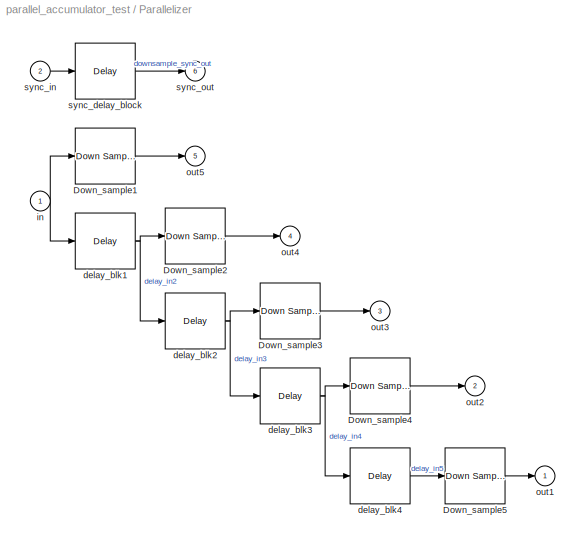
BLOCK [SubSystem] Parallelizer
  AncestorBlock = To_be_added_to_xBlocks_devels/Parallelizer
  AttributesFormatString = Sample Period = 1
  FunctionWithSeparateData = off
  MaskCallbackString = |
  MaskDescription = Parallelizer takes in a single stream and convert it into\nparallel outputs
  MaskEnableString = on,on
  MaskHideContents = off
  MaskIconFrame = on
  MaskIconOpaque = on
  MaskIconRotate = none
  MaskIconUnits = autoscale
  MaskInitialization = config.source=str2func('parallelizer_init_xblock');\nconfig.depend=get_dependlist('parallelizer');\nconfig.toplevel=gcb;\nset_param(gcb,'LinkStatus','inactive');\nxBlock(config, {config.toplevel,...\n    'n_outputs', n_outputs, ...\n    'sample_period', sample_period});
  MaskPortRotate = default
  MaskPromptString = n_outputs|sample_period
  MaskStyleString = edit,edit
  MaskToolTipString = on,on
  MaskTunableValueString = on,on
  MaskType = Parallelizer
  MaskValueString = 5|1
  MaskVariables = n_outputs=@1;sample_period=@2;
  MaskVisibilityString = on,on
  MinAlgLoopOccurrences = off
  Opaque = off
  Ports = [2, 6]
  PropExecContextOutsideSubsystem = off
  RTWSystemCode = Auto
  RequestExecContextInheritance = off
  SID = 20
  UserData = DataTag4
  UserDataPersistent = on
BLOCK [Reference] Parallelizer/Down_sample1  REF=xbsIndex_r4/Down Sample
  Ports = [1, 1]
  SID = 20:168
  SourceBlock = xbsIndex_r4/Down Sample
  SourceType = Xilinx Down Sampler Block
  block_type = dsamp
  dbl_ovrd = off
  en = off
  has_advanced_control = 0
  infoedit = Hardware notes: Sample and Latency controls determine the hardware implementation.  The cost in hardware of different implementations varies considerably; press Help for details.
  latency = 1
  sample_phase = Last Value of Frame  (most efficient)
  sample_ratio = 5
  sg_icon_stat = 60,56,1,1,white,blue,0,f9008a80,right,,[ ],[ ]
  sg_mask_display = fprintf('','COMMENT: begin icon graphics');\npatch([0 60 60 0 0 ],[0 0 56 56 0 ],[0.77 0.82 0.91 ]);\nplot([0 60 60 0 0 ],[0 0 56 56 0 ]);\npatch([12.2 23.76 31.76 39.76 47.76 31.76 20.2 12.2 ],[36.88 36.88 44.88 36.88 44.88 44.88 44.88 36.88 ],[1 1 1 ]);\npatch([20.2 31.76 23.76 12.2 20.2 ],[28.88 28.88 36.88 36.88 28.88 ],[0.931 0.946 0.973 ]);\npatch([12.2 23.76 31.76 20.2 12.2 ],[20.88 20.88 2...<+415ch>  <repeated x5 — deduplicated; at blocks: Down_sample1, Down_sample2, Down_sample3, Down_sample4, Down_sample5>
  sggui_pos = -1,-1,-1,-1
  xl_area = [0,0,0,0,0,0,0]
  xl_use_area = off
BLOCK [Reference] Parallelizer/Down_sample2  REF=xbsIndex_r4/Down Sample
  Ports = [1, 1]
  SID = 20:169
  SourceBlock = xbsIndex_r4/Down Sample
  SourceType = Xilinx Down Sampler Block
  block_type = dsamp
  dbl_ovrd = off
  en = off
  has_advanced_control = 0
  infoedit = Hardware notes: Sample and Latency controls determine the hardware implementation.  The cost in hardware of different implementations varies considerably; press Help for details.
  latency = 1
  sample_phase = Last Value of Frame  (most efficient)
  sample_ratio = 5
  sg_icon_stat = 60,56,1,1,white,blue,0,f9008a80,right,,[ ],[ ]
  sggui_pos = -1,-1,-1,-1
  xl_area = [0,0,0,0,0,0,0]
  xl_use_area = off
BLOCK [Reference] Parallelizer/Down_sample3  REF=xbsIndex_r4/Down Sample
  Ports = [1, 1]
  SID = 20:170
  SourceBlock = xbsIndex_r4/Down Sample
  SourceType = Xilinx Down Sampler Block
  block_type = dsamp
  dbl_ovrd = off
  en = off
  has_advanced_control = 0
  infoedit = Hardware notes: Sample and Latency controls determine the hardware implementation.  The cost in hardware of different implementations varies considerably; press Help for details.
  latency = 1
  sample_phase = Last Value of Frame  (most efficient)
  sample_ratio = 5
  sg_icon_stat = 60,56,1,1,white,blue,0,f9008a80,right,,[ ],[ ]
  sggui_pos = -1,-1,-1,-1
  xl_area = [0,0,0,0,0,0,0]
  xl_use_area = off
BLOCK [Reference] Parallelizer/Down_sample4  REF=xbsIndex_r4/Down Sample
  Ports = [1, 1]
  SID = 20:171
  SourceBlock = xbsIndex_r4/Down Sample
  SourceType = Xilinx Down Sampler Block
  block_type = dsamp
  dbl_ovrd = off
  en = off
  has_advanced_control = 0
  infoedit = Hardware notes: Sample and Latency controls determine the hardware implementation.  The cost in hardware of different implementations varies considerably; press Help for details.
  latency = 1
  sample_phase = Last Value of Frame  (most efficient)
  sample_ratio = 5
  sg_icon_stat = 60,56,1,1,white,blue,0,f9008a80,right,,[ ],[ ]
  sggui_pos = -1,-1,-1,-1
  xl_area = [0,0,0,0,0,0,0]
  xl_use_area = off
BLOCK [Reference] Parallelizer/Down_sample5  REF=xbsIndex_r4/Down Sample
  Ports = [1, 1]
  SID = 20:172
  SourceBlock = xbsIndex_r4/Down Sample
  SourceType = Xilinx Down Sampler Block
  block_type = dsamp
  dbl_ovrd = off
  en = off
  has_advanced_control = 0
  infoedit = Hardware notes: Sample and Latency controls determine the hardware implementation.  The cost in hardware of different implementations varies considerably; press Help for details.
  latency = 1
  sample_phase = Last Value of Frame  (most efficient)
  sample_ratio = 5
  sg_icon_stat = 60,56,1,1,white,blue,0,f9008a80,right,,[ ],[ ]
  sggui_pos = -1,-1,-1,-1
  xl_area = [0,0,0,0,0,0,0]
  xl_use_area = off
BLOCK [Reference] Parallelizer/delay_blk1  REF=xbsIndex_r4/Delay
  Ports = [1, 1]
  SID = 20:163
  SourceBlock = xbsIndex_r4/Delay
  SourceType = Xilinx Delay Block
  block_type = delay
  dbl_ovrd = off
  en = off
  has_advanced_control = 0
  infoedit = Hardware notes: A delay line is a chain, each link of which is an SRL16 followed by a flip-flop.
  infoeditControl = Selection of Reset will increase slice count due to use of real FFs and instead of SRLs
  latency = 1
  reg_retiming = off
  rst = off
  sg_icon_stat = 60,56,1,1,white,blue,0,07b98262,right,,[ ],[ ]
  sggui_pos = -1,-1,-1,-1
  xl_area = [0,0,0,0,0,0,0]
  xl_use_area = off
BLOCK [Reference] Parallelizer/delay_blk2  REF=xbsIndex_r4/Delay
  Ports = [1, 1]
  SID = 20:164
  SourceBlock = xbsIndex_r4/Delay
  SourceType = Xilinx Delay Block
  block_type = delay
  dbl_ovrd = off
  en = off
  has_advanced_control = 0
  infoedit = Hardware notes: A delay line is a chain, each link of which is an SRL16 followed by a flip-flop.
  infoeditControl = Selection of Reset will increase slice count due to use of real FFs and instead of SRLs
  latency = 1
  reg_retiming = off
  rst = off
  sg_icon_stat = 60,56,1,1,white,blue,0,07b98262,right,,[ ],[ ]
  sggui_pos = -1,-1,-1,-1
  xl_area = [0,0,0,0,0,0,0]
  xl_use_area = off
BLOCK [Reference] Parallelizer/delay_blk3  REF=xbsIndex_r4/Delay
  Ports = [1, 1]
  SID = 20:165
  SourceBlock = xbsIndex_r4/Delay
  SourceType = Xilinx Delay Block
  block_type = delay
  dbl_ovrd = off
  en = off
  has_advanced_control = 0
  infoedit = Hardware notes: A delay line is a chain, each link of which is an SRL16 followed by a flip-flop.
  infoeditControl = Selection of Reset will increase slice count due to use of real FFs and instead of SRLs
  latency = 1
  reg_retiming = off
  rst = off
  sg_icon_stat = 60,56,1,1,white,blue,0,07b98262,right,,[ ],[ ]
  sggui_pos = -1,-1,-1,-1
  xl_area = [0,0,0,0,0,0,0]
  xl_use_area = off
BLOCK [Reference] Parallelizer/delay_blk4  REF=xbsIndex_r4/Delay
  Ports = [1, 1]
  SID = 20:166
  SourceBlock = xbsIndex_r4/Delay
  SourceType = Xilinx Delay Block
  block_type = delay
  dbl_ovrd = off
  en = off
  has_advanced_control = 0
  infoedit = Hardware notes: A delay line is a chain, each link of which is an SRL16 followed by a flip-flop.
  infoeditControl = Selection of Reset will increase slice count due to use of real FFs and instead of SRLs
  latency = 1
  reg_retiming = off
  rst = off
  sg_icon_stat = 60,56,1,1,white,blue,0,07b98262,right,,[ ],[ ]
  sggui_pos = -1,-1,-1,-1
  xl_area = [0,0,0,0,0,0,0]
  xl_use_area = off
BLOCK [Inport] Parallelizer/in
  IconDisplay = Port number
  SID = 20:28
BLOCK [Outport] Parallelizer/out1
  IconDisplay = Port number
  SID = 20:44
BLOCK [Outport] Parallelizer/out2
  IconDisplay = Port number
  Port = 2
  SID = 20:45
BLOCK [Outport] Parallelizer/out3
  IconDisplay = Port number
  Port = 3
  SID = 20:46
BLOCK [Outport] Parallelizer/out4
  IconDisplay = Port number
  Port = 4
  SID = 20:47
BLOCK [Outport] Parallelizer/out5
  IconDisplay = Port number
  Port = 5
  SID = 20:124
BLOCK [Reference] Parallelizer/sync_delay_block  REF=xbsIndex_r4/Delay
  Ports = [1, 1]
  SID = 20:167
  SourceBlock = xbsIndex_r4/Delay
  SourceType = Xilinx Delay Block
  block_type = delay
  dbl_ovrd = off
  en = off
  has_advanced_control = 0
  infoedit = Hardware notes: A delay line is a chain, each link of which is an SRL16 followed by a flip-flop.
  infoeditControl = Selection of Reset will increase slice count due to use of real FFs and instead of SRLs
  latency = 1
  reg_retiming = off
  rst = off
  sg_icon_stat = 60,56,1,1,white,blue,0,07b98262,right,,[ ],[ ]
  sggui_pos = -1,-1,-1,-1
  xl_area = [0,0,0,0,0,0,0]
  xl_use_area = off
BLOCK [Inport] Parallelizer/sync_in
  IconDisplay = Port number
  Port = 2
  SID = 20:161
BLOCK [Outport] Parallelizer/sync_out
  IconDisplay = Port number
  Port = 6
  SID = 20:162
BLOCK [Scope] Scope
  DataFormat = StructureWithTime
  Floating = off
  NumInputPorts = 3
  Ports = [3]
  SID = 21
  SampleTime = 0
  TimeRange = 1000
  YMax = 5~5~5
  YMin = -5~-5~-5
  ZoomMode = yonly
BLOCK [ToWorkspace] To Workspace
  MaxDataPoints = inf
  Ports = [1]
  SID = 22
  SampleTime = -1
  SaveFormat = Structure
  VariableName = output
NET Counter:1 -> Gateway Out1:1, Parallelizer:1, Parallelizer:2
LINE Gateway Out1:1 -> Scope:3
LINE Parallel_accumulator_xblock1/adder_tree1/adder_0:1 -> Parallel_accumulator_xblock1/adder_tree1/adder_2:2
LINE Parallel_accumulator_xblock1/adder_tree1/adder_2:1 -> Parallel_accumulator_xblock1/adder_tree1/dout:1
LINE Parallel_accumulator_xblock1/adder_tree1/delay_1:1 -> Parallel_accumulator_xblock1/adder_tree1/adder_2:1
LINE Parallel_accumulator_xblock1/adder_tree1/din_1:1 -> Parallel_accumulator_xblock1/adder_tree1/adder_0:2
LINE Parallel_accumulator_xblock1/adder_tree1/din_2:1 -> Parallel_accumulator_xblock1/adder_tree1/adder_0:1
LINE Parallel_accumulator_xblock1/adder_tree1/din_3:1 -> Parallel_accumulator_xblock1/adder_tree1/delay_1:1
LINE Parallel_accumulator_xblock1/adder_tree1/sync:1 -> Parallel_accumulator_xblock1/adder_tree1/sync_delay:1
LINE Parallel_accumulator_xblock1/adder_tree1/sync_delay:1 -> Parallel_accumulator_xblock1/adder_tree1/sync_out:1
LINE Parallel_accumulator_xblock1/adder_tree1:1 -> Parallel_accumulator_xblock1/adder_tree2:1
LINE Parallel_accumulator_xblock1/adder_tree1:2 -> Parallel_accumulator_xblock1/out1:1
LINE Parallel_accumulator_xblock1/adder_tree2/adder_0:1 -> Parallel_accumulator_xblock1/adder_tree2/adder_2:2
LINE Parallel_accumulator_xblock1/adder_tree2/adder_2:1 -> Parallel_accumulator_xblock1/adder_tree2/dout:1
LINE Parallel_accumulator_xblock1/adder_tree2/delay_1:1 -> Parallel_accumulator_xblock1/adder_tree2/adder_2:1
LINE Parallel_accumulator_xblock1/adder_tree2/din_1:1 -> Parallel_accumulator_xblock1/adder_tree2/adder_0:2
LINE Parallel_accumulator_xblock1/adder_tree2/din_2:1 -> Parallel_accumulator_xblock1/adder_tree2/adder_0:1
LINE Parallel_accumulator_xblock1/adder_tree2/din_3:1 -> Parallel_accumulator_xblock1/adder_tree2/delay_1:1
LINE Parallel_accumulator_xblock1/adder_tree2/sync:1 -> Parallel_accumulator_xblock1/adder_tree2/sync_delay:1
LINE Parallel_accumulator_xblock1/adder_tree2/sync_delay:1 -> Parallel_accumulator_xblock1/adder_tree2/sync_out:1
LINE Parallel_accumulator_xblock1/adder_tree2:1 -> Parallel_accumulator_xblock1/adder_tree3:1
LINE Parallel_accumulator_xblock1/adder_tree2:2 -> Parallel_accumulator_xblock1/out2:1
LINE Parallel_accumulator_xblock1/adder_tree3/adder_0:1 -> Parallel_accumulator_xblock1/adder_tree3/adder_2:2
LINE Parallel_accumulator_xblock1/adder_tree3/adder_2:1 -> Parallel_accumulator_xblock1/adder_tree3/dout:1
LINE Parallel_accumulator_xblock1/adder_tree3/delay_1:1 -> Parallel_accumulator_xblock1/adder_tree3/adder_2:1
LINE Parallel_accumulator_xblock1/adder_tree3/din_1:1 -> Parallel_accumulator_xblock1/adder_tree3/adder_0:2
LINE Parallel_accumulator_xblock1/adder_tree3/din_2:1 -> Parallel_accumulator_xblock1/adder_tree3/adder_0:1
LINE Parallel_accumulator_xblock1/adder_tree3/din_3:1 -> Parallel_accumulator_xblock1/adder_tree3/delay_1:1
LINE Parallel_accumulator_xblock1/adder_tree3/sync:1 -> Parallel_accumulator_xblock1/adder_tree3/sync_delay:1
LINE Parallel_accumulator_xblock1/adder_tree3/sync_delay:1 -> Parallel_accumulator_xblock1/adder_tree3/sync_out:1
LINE Parallel_accumulator_xblock1/adder_tree3:1 -> Parallel_accumulator_xblock1/adder_tree4:1
LINE Parallel_accumulator_xblock1/adder_tree3:2 -> Parallel_accumulator_xblock1/out3:1
LINE Parallel_accumulator_xblock1/adder_tree4/adder_0:1 -> Parallel_accumulator_xblock1/adder_tree4/adder_2:2
LINE Parallel_accumulator_xblock1/adder_tree4/adder_2:1 -> Parallel_accumulator_xblock1/adder_tree4/dout:1
LINE Parallel_accumulator_xblock1/adder_tree4/delay_1:1 -> Parallel_accumulator_xblock1/adder_tree4/adder_2:1
LINE Parallel_accumulator_xblock1/adder_tree4/din_1:1 -> Parallel_accumulator_xblock1/adder_tree4/adder_0:2
LINE Parallel_accumulator_xblock1/adder_tree4/din_2:1 -> Parallel_accumulator_xblock1/adder_tree4/adder_0:1
LINE Parallel_accumulator_xblock1/adder_tree4/din_3:1 -> Parallel_accumulator_xblock1/adder_tree4/delay_1:1
LINE Parallel_accumulator_xblock1/adder_tree4/sync:1 -> Parallel_accumulator_xblock1/adder_tree4/sync_delay:1
LINE Parallel_accumulator_xblock1/adder_tree4/sync_delay:1 -> Parallel_accumulator_xblock1/adder_tree4/sync_out:1
LINE Parallel_accumulator_xblock1/adder_tree4:1 -> Parallel_accumulator_xblock1/adder_tree5:1
LINE Parallel_accumulator_xblock1/adder_tree4:2 -> Parallel_accumulator_xblock1/out4:1
LINE Parallel_accumulator_xblock1/adder_tree5/adder_0:1 -> Parallel_accumulator_xblock1/adder_tree5/adder_2:2
LINE Parallel_accumulator_xblock1/adder_tree5/adder_2:1 -> Parallel_accumulator_xblock1/adder_tree5/dout:1
LINE Parallel_accumulator_xblock1/adder_tree5/delay_1:1 -> Parallel_accumulator_xblock1/adder_tree5/adder_2:1
LINE Parallel_accumulator_xblock1/adder_tree5/din_1:1 -> Parallel_accumulator_xblock1/adder_tree5/adder_0:2
LINE Parallel_accumulator_xblock1/adder_tree5/din_2:1 -> Parallel_accumulator_xblock1/adder_tree5/adder_0:1
LINE Parallel_accumulator_xblock1/adder_tree5/din_3:1 -> Parallel_accumulator_xblock1/adder_tree5/delay_1:1
LINE Parallel_accumulator_xblock1/adder_tree5/sync:1 -> Parallel_accumulator_xblock1/adder_tree5/sync_delay:1
LINE Parallel_accumulator_xblock1/adder_tree5/sync_delay:1 -> Parallel_accumulator_xblock1/adder_tree5/sync_out:1
LINE Parallel_accumulator_xblock1/adder_tree5:1 -> Parallel_accumulator_xblock1/sync_out:1
LINE Parallel_accumulator_xblock1/adder_tree5:2 -> Parallel_accumulator_xblock1/out5:1
LINE Parallel_accumulator_xblock1/delay4:1 -> Parallel_accumulator_xblock1/adder_tree1:4
NET Parallel_accumulator_xblock1/delay5:1 -> Parallel_accumulator_xblock1/adder_tree1:3, Parallel_accumulator_xblock1/adder_tree2:4
NET Parallel_accumulator_xblock1/in1:1 -> Parallel_accumulator_xblock1/adder_tree1:2, Parallel_accumulator_xblock1/adder_tree2:3, Parallel_accumulator_xblock1/adder_tree3:4
NET Parallel_accumulator_xblock1/in2:1 -> Parallel_accumulator_xblock1/adder_tree2:2, Parallel_accumulator_xblock1/adder_tree3:3, Parallel_accumulator_xblock1/adder_tree4:4
NET Parallel_accumulator_xblock1/in3:1 -> Parallel_accumulator_xblock1/adder_tree3:2, Parallel_accumulator_xblock1/adder_tree4:3, Parallel_accumulator_xblock1/adder_tree5:4
NET Parallel_accumulator_xblock1/in4:1 -> Parallel_accumulator_xblock1/adder_tree4:2, Parallel_accumulator_xblock1/adder_tree5:3, Parallel_accumulator_xblock1/delay4:1
NET Parallel_accumulator_xblock1/in5:1 -> Parallel_accumulator_xblock1/adder_tree5:2, Parallel_accumulator_xblock1/delay5:1
LINE Parallel_accumulator_xblock1/sync_in:1 -> Parallel_accumulator_xblock1/adder_tree1:1
LINE Parallel_accumulator_xblock1:2 -> Parallel_scope1:1
LINE Parallel_accumulator_xblock1:3 -> Parallel_scope1:2
LINE Parallel_accumulator_xblock1:4 -> Parallel_scope1:3
LINE Parallel_accumulator_xblock1:5 -> Parallel_scope1:4
LINE Parallel_accumulator_xblock1:6 -> Parallel_scope1:5
LINE Parallel_scope/gateway_out1:1 -> Parallel_scope/switch:2
LINE Parallel_scope/gateway_out2:1 -> Parallel_scope/switch:3
LINE Parallel_scope/gateway_out3:1 -> Parallel_scope/switch:4
LINE Parallel_scope/gateway_out4:1 -> Parallel_scope/switch:5
LINE Parallel_scope/gateway_out5:1 -> Parallel_scope/switch:6
LINE Parallel_scope/in1:1 -> Parallel_scope/gateway_out1:1
LINE Parallel_scope/in2:1 -> Parallel_scope/gateway_out2:1
LINE Parallel_scope/in3:1 -> Parallel_scope/gateway_out3:1
LINE Parallel_scope/in4:1 -> Parallel_scope/gateway_out4:1
LINE Parallel_scope/in5:1 -> Parallel_scope/gateway_out5:1
LINE Parallel_scope/sel:1 -> Parallel_scope/switch:1
LINE Parallel_scope/switch:1 -> Parallel_scope/out:1
LINE Parallel_scope1/gateway_out1:1 -> Parallel_scope1/switch:2
LINE Parallel_scope1/gateway_out2:1 -> Parallel_scope1/switch:3
LINE Parallel_scope1/gateway_out3:1 -> Parallel_scope1/switch:4
LINE Parallel_scope1/gateway_out4:1 -> Parallel_scope1/switch:5
LINE Parallel_scope1/gateway_out5:1 -> Parallel_scope1/switch:6
LINE Parallel_scope1/in1:1 -> Parallel_scope1/gateway_out1:1
LINE Parallel_scope1/in2:1 -> Parallel_scope1/gateway_out2:1
LINE Parallel_scope1/in3:1 -> Parallel_scope1/gateway_out3:1
LINE Parallel_scope1/in4:1 -> Parallel_scope1/gateway_out4:1
LINE Parallel_scope1/in5:1 -> Parallel_scope1/gateway_out5:1
LINE Parallel_scope1/sel:1 -> Parallel_scope1/switch:1
LINE Parallel_scope1/switch:1 -> Parallel_scope1/out:1
NET Parallel_scope1:1 -> Scope:1, To Workspace:1
LINE Parallel_scope:1 -> Scope:2
LINE Parallelizer/Down_sample1:1 -> Parallelizer/out5:1
LINE Parallelizer/Down_sample2:1 -> Parallelizer/out4:1
LINE Parallelizer/Down_sample3:1 -> Parallelizer/out3:1
LINE Parallelizer/Down_sample4:1 -> Parallelizer/out2:1
LINE Parallelizer/Down_sample5:1 -> Parallelizer/out1:1
NET Parallelizer/delay_blk1:1 -> Parallelizer/Down_sample2:1, Parallelizer/delay_blk2:1
NET Parallelizer/delay_blk2:1 -> Parallelizer/Down_sample3:1, Parallelizer/delay_blk3:1
NET Parallelizer/delay_blk3:1 -> Parallelizer/Down_sample4:1, Parallelizer/delay_blk4:1
LINE Parallelizer/delay_blk4:1 -> Parallelizer/Down_sample5:1
NET Parallelizer/in:1 -> Parallelizer/Down_sample1:1, Parallelizer/delay_blk1:1
LINE Parallelizer/sync_delay_block:1 -> Parallelizer/sync_out:1
LINE Parallelizer/sync_in:1 -> Parallelizer/sync_delay_block:1
NET Parallelizer:1 -> Parallel_accumulator_xblock1:1, Parallel_accumulator_xblock1:2, Parallel_scope:1
NET Parallelizer:2 -> Parallel_accumulator_xblock1:3, Parallel_scope:2
NET Parallelizer:3 -> Parallel_accumulator_xblock1:4, Parallel_scope:3
NET Parallelizer:4 -> Parallel_accumulator_xblock1:5, Parallel_scope:4
NET Parallelizer:5 -> Parallel_accumulator_xblock1:6, Parallel_scope:5
note: NET lines group one-source signal fan-out (src -> all destinations, sorted); 1:1 wires keep LINE
